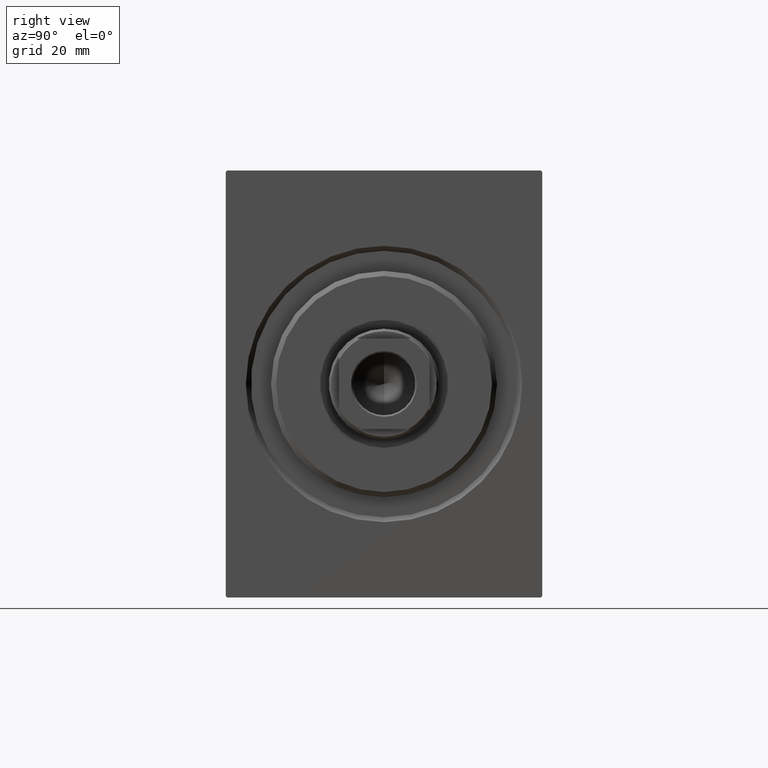
[diagram: clean part render]
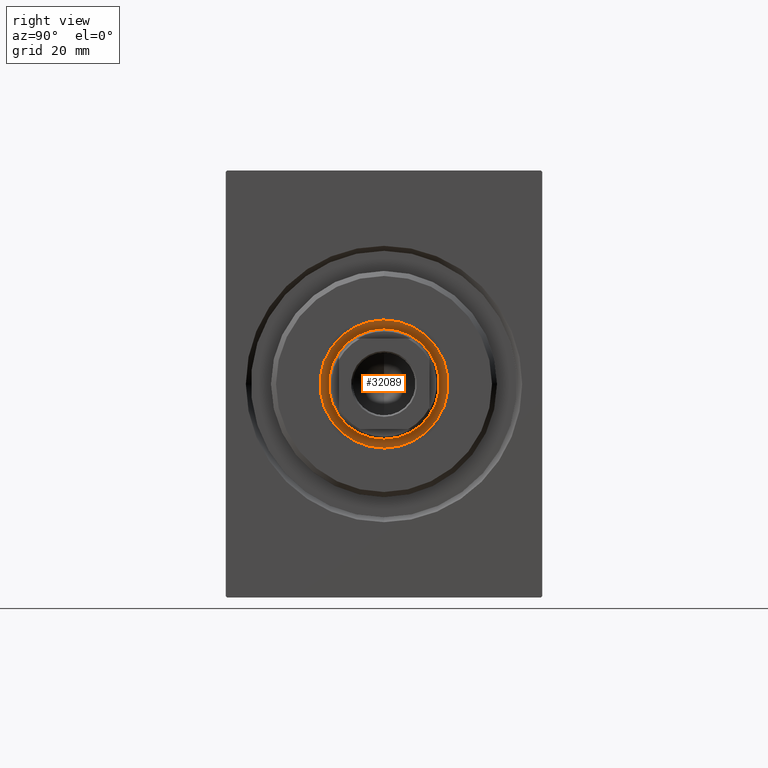
[diagram: same view with one face highlighted and labeled with its STEP entity id]
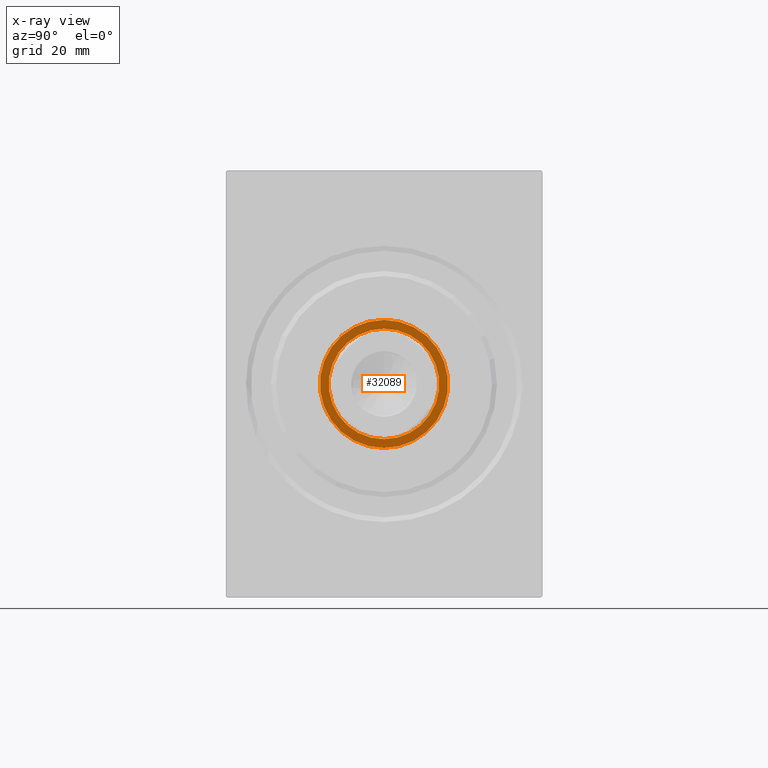
[diagram: x-ray of the same camera — body ghosted, the highlighted face saturated]
A machine part, right view. The second image highlights one B-rep face of the part: STEP entity #32089.
The next image is the same camera in x-ray: the body ghosted, the highlighted face saturated — about 0% of this face is hidden behind the body in this view.
In plain terms, the highlighted planar face has unit normal (1, 0, 0).
Its self-contained STEP definition (entity closure, byte-faithful):
#433 = CARTESIAN_POINT ( 'NONE',  ( 1.500000000000000000, 0.000000000000000000, 0.000000000000000000 ) ) ;
#676 = CIRCLE ( 'NONE', #20778, 12.75000000000000000 ) ;
#715 = CARTESIAN_POINT ( 'NONE',  ( 1.500000000000000000, 1.561424668912874914E-15, -12.75000000000000000 ) ) ;
#1243 = FACE_OUTER_BOUND ( 'NONE', #9891, .T. ) ;
#1842 = ORIENTED_EDGE ( 'NONE', *, *, #4745, .T. ) ;
#2507 = ORIENTED_EDGE ( 'NONE', *, *, #11790, .T. ) ;
#4297 = EDGE_CURVE ( 'NONE', #9853, #24576, #39667, .T. ) ;
#4713 = DIRECTION ( 'NONE',  ( 1.000000000000000000, 0.000000000000000000, 0.000000000000000000 ) ) ;
#4745 = EDGE_CURVE ( 'NONE', #27660, #28072, #27181, .T. ) ;
#6361 = CARTESIAN_POINT ( 'NONE',  ( 1.500000000000001332, 0.000000000000000000, 0.000000000000000000 ) ) ;
#9853 = VERTEX_POINT ( 'NONE', #16503 ) ;
#9891 = EDGE_LOOP ( 'NONE', ( #2507, #1842 ) ) ;
#10230 = EDGE_LOOP ( 'NONE', ( #35116, #22695 ) ) ;
#11224 = PLANE ( 'NONE',  #36247 ) ;
#11790 = EDGE_CURVE ( 'NONE', #28072, #27660, #676, .T. ) ;
#12145 = CARTESIAN_POINT ( 'NONE',  ( 1.500000000000000000, 0.000000000000000000, 12.75000000000000000 ) ) ;
#12868 = DIRECTION ( 'NONE',  ( 1.000000000000000000, 0.000000000000000000, 0.000000000000000000 ) ) ;
#13656 = DIRECTION ( 'NONE',  ( 1.000000000000000000, 0.000000000000000000, 0.000000000000000000 ) ) ;
#15482 = CARTESIAN_POINT ( 'NONE',  ( 1.500000000000001332, 0.000000000000000000, -11.00000000000000000 ) ) ;
#15597 = EDGE_CURVE ( 'NONE', #24576, #9853, #20881, .T. ) ;
#16503 = CARTESIAN_POINT ( 'NONE',  ( 1.500000000000001332, 1.347111479062088207E-15, 11.00000000000000000 ) ) ;
#17929 = DIRECTION ( 'NONE',  ( 0.000000000000000000, 0.000000000000000000, -1.000000000000000000 ) ) ;
#19028 = CARTESIAN_POINT ( 'NONE',  ( 1.500000000000000000, 0.000000000000000000, 0.000000000000000000 ) ) ;
#20778 = AXIS2_PLACEMENT_3D ( 'NONE', #19028, #31645, #25326 ) ;
#20881 = CIRCLE ( 'NONE', #33360, 11.00000000000000000 ) ;
#20976 = AXIS2_PLACEMENT_3D ( 'NONE', #433, #13656, #40127 ) ;
#22695 = ORIENTED_EDGE ( 'NONE', *, *, #4297, .F. ) ;
#24436 = AXIS2_PLACEMENT_3D ( 'NONE', #33301, #30047, #40018 ) ;
#24455 = CARTESIAN_POINT ( 'NONE',  ( 1.500000000000000000, 0.000000000000000000, 0.000000000000000000 ) ) ;
#24576 = VERTEX_POINT ( 'NONE', #15482 ) ;
#25326 = DIRECTION ( 'NONE',  ( 0.000000000000000000, 0.000000000000000000, -1.000000000000000000 ) ) ;
#27181 = CIRCLE ( 'NONE', #20976, 12.75000000000000000 ) ;
#27660 = VERTEX_POINT ( 'NONE', #715 ) ;
#28072 = VERTEX_POINT ( 'NONE', #12145 ) ;
#30047 = DIRECTION ( 'NONE',  ( 1.000000000000000000, 0.000000000000000000, 0.000000000000000000 ) ) ;
#30972 = FACE_BOUND ( 'NONE', #10230, .T. ) ;
#31645 = DIRECTION ( 'NONE',  ( 1.000000000000000000, 0.000000000000000000, 0.000000000000000000 ) ) ;
#32089 = ADVANCED_FACE ( 'NONE', ( #30972, #1243 ), #11224, .T. ) ;
#33301 = CARTESIAN_POINT ( 'NONE',  ( 1.500000000000001332, 0.000000000000000000, 0.000000000000000000 ) ) ;
#33360 = AXIS2_PLACEMENT_3D ( 'NONE', #6361, #12868, #42825 ) ;
#35116 = ORIENTED_EDGE ( 'NONE', *, *, #15597, .F. ) ;
#36247 = AXIS2_PLACEMENT_3D ( 'NONE', #24455, #4713, #17929 ) ;
#39667 = CIRCLE ( 'NONE', #24436, 11.00000000000000000 ) ;
#40018 = DIRECTION ( 'NONE',  ( 0.000000000000000000, 0.000000000000000000, -1.000000000000000000 ) ) ;
#40127 = DIRECTION ( 'NONE',  ( 0.000000000000000000, 0.000000000000000000, -1.000000000000000000 ) ) ;
#42825 = DIRECTION ( 'NONE',  ( 0.000000000000000000, 0.000000000000000000, -1.000000000000000000 ) ) ;